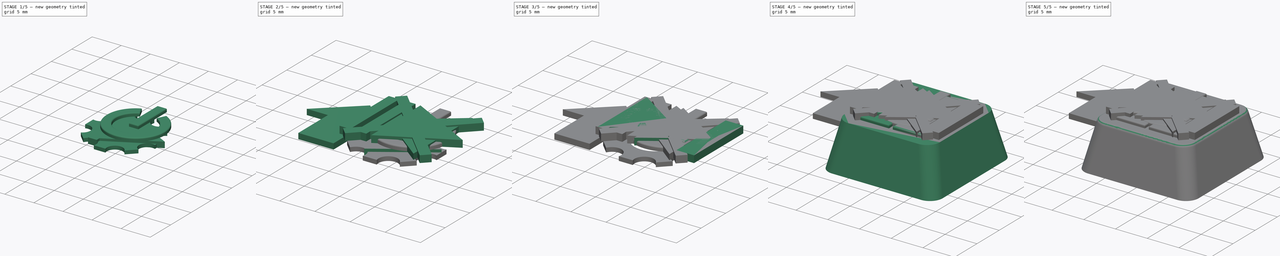
[diagram: build sequence overview — one tinted view per stage of 5, left to right]
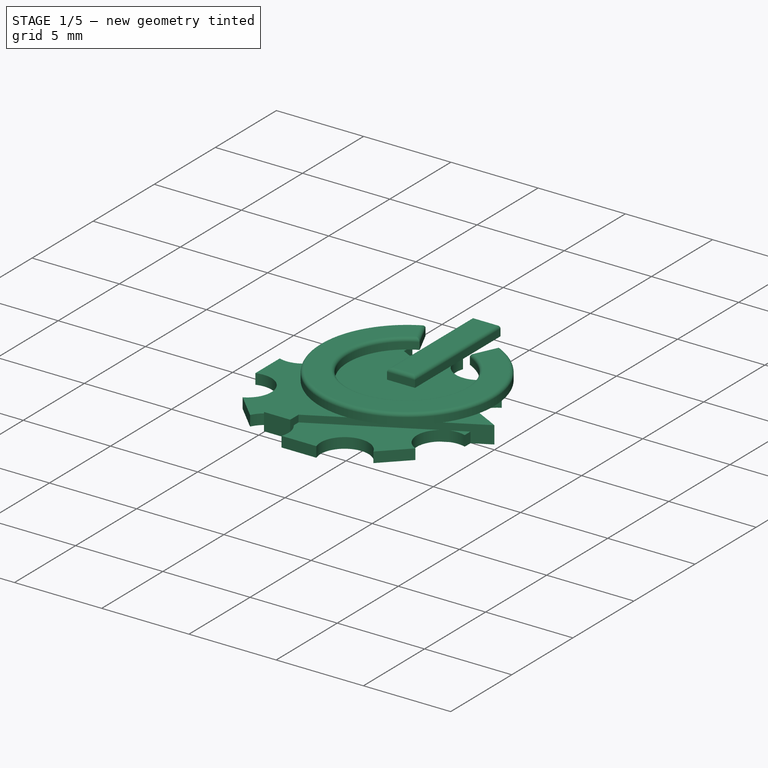
[diagram: stage 1 of 5 — iso view after this stage's code; geometry added in this stage tinted green]
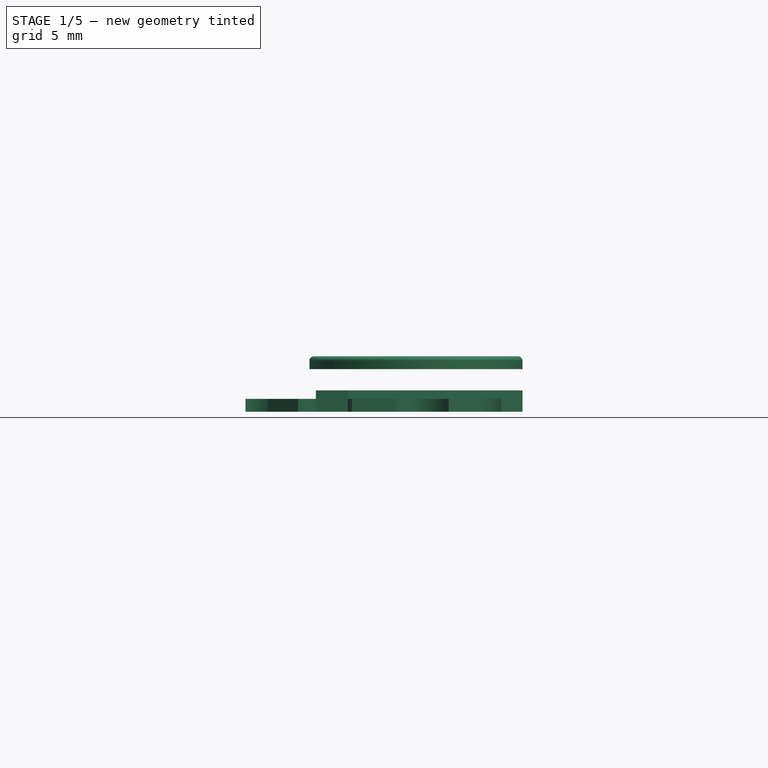
[diagram: stage 1 of 5 — front view after this stage's code; geometry added in this stage tinted green]
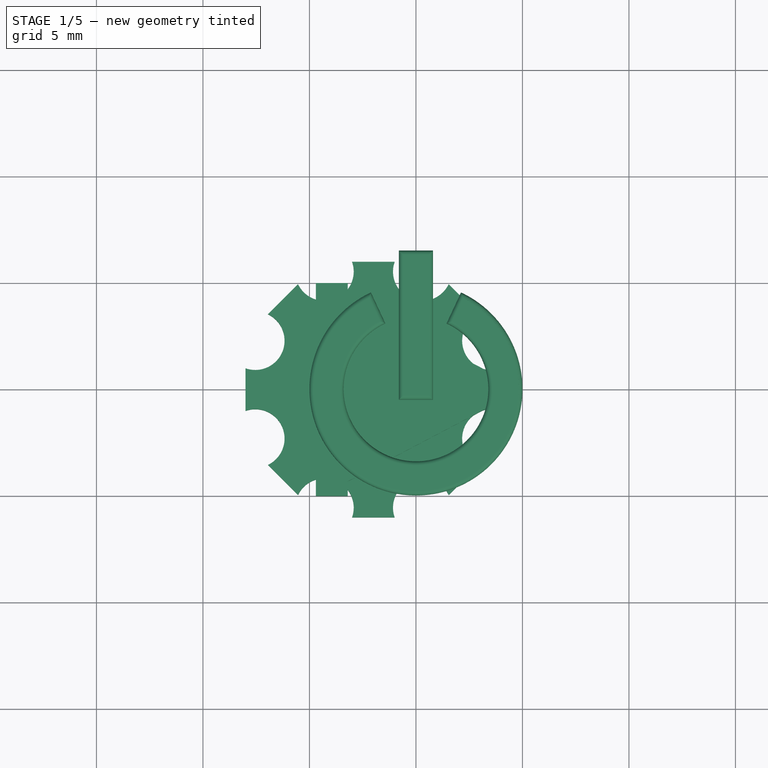
[diagram: stage 1 of 5 — top view after this stage's code; geometry added in this stage tinted green]
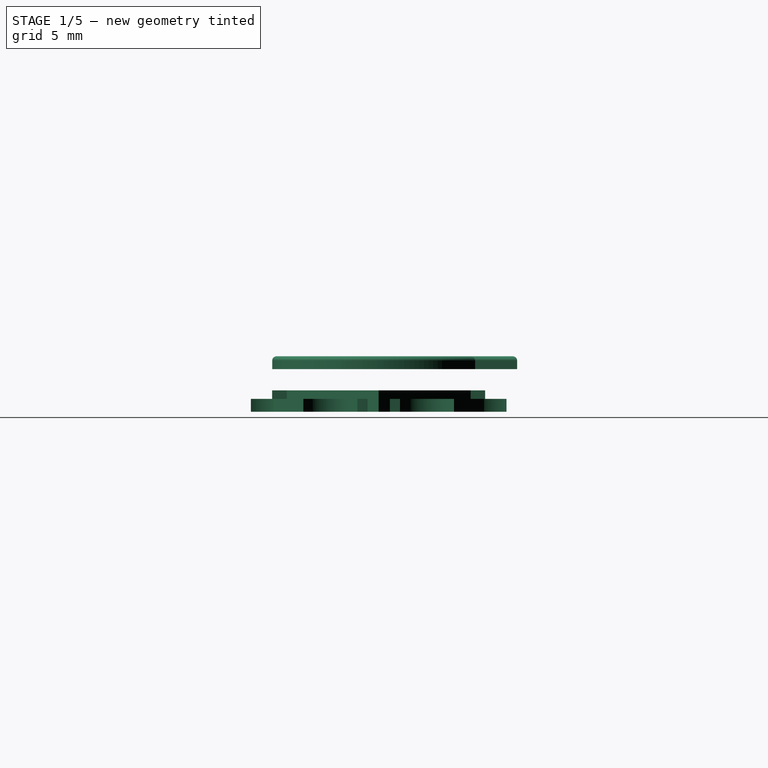
[diagram: stage 1 of 5 — right view after this stage's code; geometry added in this stage tinted green]
FCSTD DOCUMENT  (FreeCAD 0.17R13541 (Git))
Label: Keycap_quadr_flat_fillet_shall
License: All rights reserved
LicenseURL: http://en.wikipedia.org/wiki/All_rights_reserved
objects: Sketcher::SketchObject×21, PartDesign::Body×16, PartDesign::Pad×14, Part::Fillet×8, Part::MultiFuse×6, Part::Sweep×2, PartDesign::Pocket×1, Part::Cut×1, Part::Chamfer×1, Part::Part2DObjectPython×1, Part::Extrusion×1, Part::Mirroring×1
note: 88 computed .brp shape members not serialized (recipe doc carries the construction recipe); baked Part::Feature solids carry a one-line shape summary decoded from their .brp

FEATURE [Sketcher::SketchObject] Sketch015
  MapMode = 5
  Support = -> [XY_Plane010]
  sketch-geometry (3):
    g0: LineSegment StartX=-4.5 StartY=5 StartZ=0 EndX=5 EndY=0 EndZ=0
    g1: LineSegment StartX=5 StartY=0 StartZ=0 EndX=-4.5 EndY=-5 EndZ=0
    g2: LineSegment StartX=-4.5 StartY=-5 StartZ=0 EndX=-4.5 EndY=5 EndZ=0
  constraints (10):
    c: PointOnObject(g0,g-1)
    c: Coincident(g0,g1)
    c: Coincident(g1,g2)
    c: Vertical(g2)
    c: Equal(g0,g1)
    c: DistanceX(g-1,g0) = 5
    c: DistanceY(g-1,g0) = 5
    c: DistanceY(g1,g-1) = 5
    c: DistanceX(g1,g-1) = 4.5
    c: DistanceY(g1,g2) = 10
FEATURE [Sketcher::SketchObject] Sketch016
  MapMode = 5
  Support = -> [XY_Plane011]
  sketch-geometry (4):
    g0: LineSegment StartX=-4.7 StartY=5 StartZ=0 EndX=-3.2 EndY=5 EndZ=0
    g1: LineSegment StartX=-3.2 StartY=5 StartZ=0 EndX=-3.2 EndY=-5 EndZ=0
    g2: LineSegment StartX=-3.2 StartY=-5 StartZ=0 EndX=-4.7 EndY=-5 EndZ=0
    g3: LineSegment StartX=-4.7 StartY=-5 StartZ=0 EndX=-4.7 EndY=5 EndZ=0
  constraints (13):
    c: Coincident(g0,g1)
    c: Coincident(g1,g2)
    c: Coincident(g2,g3)
    c: Coincident(g3,g0)
    c: Horizontal(g0)
    c: Horizontal(g2)
    c: Vertical(g1)
    c: Vertical(g3)
    c: Equal(g3,g1)
    c: DistanceY(g-1,g0) = 5
    c: DistanceX(g0,g-1) = 3.2
    c: DistanceX(g0,g0) = 1.5
    c: DistanceY(g2,g0) = 10
FEATURE [PartDesign::Pad] Pad008
  Length = 1
  Length2 = 100
  Profile = -> Sketch016
  Type = 0
FEATURE [PartDesign::Pad] Pad009
  Length = 1
  Length2 = 100
  Profile = -> Sketch015
  Type = 0
FEATURE [Sketcher::SketchObject] Sketch018
  MapMode = 5
  Support = -> [XY_Plane013]
  sketch-geometry (17):
    g0: LineSegment StartX=-3 StartY=6 StartZ=0 EndX=-1 EndY=6 EndZ=0
    g1: LineSegment StartX=-5.53553 StartY=4.94975 StartZ=0 EndX=-6.94975 EndY=3.53553 EndZ=0
    g2: LineSegment StartX=-8 StartY=1 StartZ=0 EndX=-8 EndY=-1 EndZ=0
    g3: LineSegment StartX=-6.94975 StartY=-3.53553 StartZ=0 EndX=-5.53553 EndY=-4.94975 EndZ=0
    g4: LineSegment StartX=-3 StartY=-6 StartZ=0 EndX=-1 EndY=-6 EndZ=0
    g5: LineSegment StartX=1.53553 StartY=-4.94975 StartZ=0 EndX=2.94975 EndY=-3.53553 EndZ=0
    g6: LineSegment StartX=4 StartY=-1 StartZ=0 EndX=4 EndY=1 EndZ=0
    g7: LineSegment StartX=2.94975 StartY=3.53553 StartZ=0 EndX=1.53553 EndY=4.94975 EndZ=0
    g8: ArcOfCircle CenterX=-7.54328 CenterY=2.2961 CenterZ=0 NormalX=0 NormalY=0 NormalZ=1 AngleXU=0 Radius=1.37422 StartAngle=4.37359 EndAngle=7.40738
    g9: ArcOfCircle CenterX=-4.2961 CenterY=5.54328 CenterZ=0 NormalX=0 NormalY=0 NormalZ=1 AngleXU=0 Radius=1.37422 StartAngle=3.5882 EndAngle=6.62198
    g10: ArcOfCircle CenterX=0.296101 CenterY=5.54328 CenterZ=0 NormalX=0 NormalY=0 NormalZ=1 AngleXU=0 Radius=1.37422 StartAngle=2.8028 EndAngle=5.83658
    g11: ArcOfCircle CenterX=3.54328 CenterY=2.2961 CenterZ=0 NormalX=0 NormalY=0 NormalZ=1 AngleXU=0 Radius=1.37422 StartAngle=2.0174 EndAngle=5.05118
    g12: ArcOfCircle CenterX=3.54328 CenterY=-2.2961 CenterZ=0 NormalX=0 NormalY=0 NormalZ=1 AngleXU=0 Radius=1.37422 StartAngle=1.232 EndAngle=4.26579
    g13: ArcOfCircle CenterX=0.296101 CenterY=-5.54328 CenterZ=0 NormalX=0 NormalY=0 NormalZ=1 AngleXU=0 Radius=1.37422 StartAngle=0.446603 EndAngle=3.48039
    g14: ArcOfCircle CenterX=-4.2961 CenterY=-5.54328 CenterZ=0 NormalX=0 NormalY=0 NormalZ=1 AngleXU=0 Radius=1.37422 StartAngle=5.94439 EndAngle=8.97818
    g15: ArcOfCircle CenterX=-7.54328 CenterY=-2.2961 CenterZ=0 NormalX=0 NormalY=0 NormalZ=1 AngleXU=0 Radius=1.37422 StartAngle=5.15899 EndAngle=8.19278
    g16: Circle CenterX=-2 CenterY=0 CenterZ=0 NormalX=0 NormalY=0 NormalZ=1 AngleXU=0 Radius=3
  constraints (55):
    c: Horizontal(g0)
    c: Vertical(g2)
    c: Horizontal(g4)
    c: Vertical(g6)
    c: Equal(g0,g7)
    c: Equal(g0,g6)
    c: Equal(g0,g5)
    c: Equal(g0,g4)
    c: Equal(g0,g3)
    c: Equal(g0,g2)
    c: Equal(g0,g1)
    c: Angle(g0,g7) = 2.35619
    c: Angle(g6,g5) = 2.35619
    c: Angle(g4,g3) = 2.35619
    c: Angle(g1,g0) = 2.35619
    c: Coincident(g8,g1)
    c: Coincident(g8,g2)
    c: Coincident(g9,g1)
    c: Coincident(g9,g0)
    c: Coincident(g10,g0)
    c: Coincident(g10,g7)
    c: Coincident(g11,g7)
    c: Coincident(g11,g6)
    c: Coincident(g12,g6)
    c: Coincident(g12,g5)
    c: Coincident(g13,g5)
    c: Coincident(g13,g4)
    c: Coincident(g14,g4)
    c: Coincident(g14,g3)
    c: Coincident(g15,g3)
    c: Coincident(g15,g2)
    c: Equal(g10, g11-g15) x5
    c: Equal(g10,g8)
    c: Equal(g10,g9)
    c: DistanceX(g1,g3) = 0
    c: DistanceX(g7,g5) = 0
    c: DistanceY(g7,g1) = 0
    c: DistanceY(g3,g5) = 0
    c: DistanceY(g8,g11) = 0
    c: DistanceY(g15,g12) = 0
    c: DistanceY(g13,g14) = 0
    c: DistanceY(g9,g10) = 0
    c: DistanceX(g15,g8) = 0
    c: DistanceX(g14,g9) = 0
    c: DistanceX(g0,g0) = 2
    c: DistanceX(g2,g6) = 12
    c: DistanceY(g4,g0) = 12
    c: DistanceX(g2,g16) = 6
    c: DistanceY(g16,g0) = 6
    c: Distance(g8,g16) = 6
    c: Distance(g9,g16) = 6
    c: DistanceY(g-1,g16) = 0
    c: DistanceX(g16,g-1) = 2
    c: Radius(g16) = 3
    c: Distance(g16,g7) = 6
FEATURE [PartDesign::Pad] Pad011
  Length = 0.6
  Length2 = 100
  Profile = -> Sketch018
  Type = 0
FEATURE [PartDesign::Body] Body013  label="Bild Settings"
  Group = -> [Sketch018,Pad011]
  Origin = -> Origin013
  Placement = pos=(2,0,2) rot=(0,0,1;0rad)
  Tip = -> Pad011
FEATURE [Sketcher::SketchObject] Sketch019
  MapMode = 5
  Support = -> [XY_Plane014]
  sketch-geometry (4):
    g0: LineSegment StartX=-0.56 StartY=3.08 StartZ=0 EndX=0.116189 EndY=4.53009 EndZ=0
    g1: LineSegment StartX=-3.44 StartY=3.08 StartZ=0 EndX=-4.11619 EndY=4.53009 EndZ=0
    g2: ArcOfCircle CenterX=-2 CenterY=0 CenterZ=0 NormalX=0 NormalY=0 NormalZ=1 AngleXU=0 Radius=3.4 StartAngle=2.00813 EndAngle=7.41664
    g3: ArcOfCircle CenterX=-2 CenterY=0 CenterZ=0 NormalX=0 NormalY=0 NormalZ=1 AngleXU=0 Radius=5 StartAngle=2.00781 EndAngle=7.41697
  constraints (13):
    c: PointOnObject(g2,g-1)
    c: Coincident(g2,g0)
    c: Coincident(g2,g1)
    c: Coincident(g3,g2)
    c: Coincident(g3,g0)
    c: Coincident(g3,g1)
    c: Equal(g1,g0)
    c: Angle(g-1,g0) = 1.13446
    c: Angle(g-1,g1) = 2.00713
    c: DistanceX(g2,g-1) = 2
    c: Radius(g3) = 5
    c: Radius(g2) = 3.4
    c: DistanceY(g-1,g0) = 3.08
FEATURE [PartDesign::Pad] Pad012
  Length = 0.6
  Length2 = 100
  Profile = -> Sketch019
  Type = 0
FEATURE [PartDesign::Body] Body014  label="Bild Power Ring"
  Group = -> [Sketch019,Pad012]
  Origin = -> Origin014
  Placement = pos=(2,0,2) rot=(0,0,1;0rad)
  Tip = -> Pad012
FEATURE [Sketcher::SketchObject] Sketch021
  AttachmentOffset = pos=(0,0,2) rot=(0,0,1;0rad)
  MapMode = 5
  Placement = pos=(0,0,2) rot=(0,0,1;0rad)
  Support = -> [XY_Plane015]
  sketch-geometry (4):
    g0: LineSegment StartX=-0.8 StartY=6.5 StartZ=0 EndX=0.8 EndY=6.5 EndZ=0
    g1: LineSegment StartX=0.8 StartY=6.5 StartZ=0 EndX=0.8 EndY=-0.5 EndZ=0
    g2: LineSegment StartX=0.8 StartY=-0.5 StartZ=0 EndX=-0.8 EndY=-0.5 EndZ=0
    g3: LineSegment StartX=-0.8 StartY=-0.5 StartZ=0 EndX=-0.8 EndY=6.5 EndZ=0
  constraints (12):
    c: Coincident(g0,g1)
    c: Coincident(g1,g2)
    c: Coincident(g2,g3)
    c: Coincident(g3,g0)
    c: Horizontal(g0)
    c: Horizontal(g2)
    c: Vertical(g1)
    c: Vertical(g3)
    c: DistanceX(g0,g0) = 1.6
    c: DistanceY(g1,g-1) = 0.5
    c: DistanceY(g2,g0) = 7
    c: DistanceX(g2,g-1) = 0.8
FEATURE [PartDesign::Pad] Pad013
  Length = 0.6
  Length2 = 100
  Profile = -> Sketch021
  Type = 0
FEATURE [PartDesign::Body] Body015  label="Bild Power Bar"
  Group = -> [Sketch021,Pad013]
  Origin = -> Origin015
  Tip = -> Pad013
FEATURE [Part::MultiFuse] Fusion005
  Shapes = -> [Body015,Body014]
FEATURE [Part::Fillet] Fillet007  label="Bild Power"
  Base = -> Fusion005
  Edges = 8 edges r=0.2: [Edge4,Edge7,Edge10,Edge12,Edge16,Edge19,Edge22,Edge24]
note: 1 file-system path scrubbed to <path> (originals preserved in the JSON sidecar)
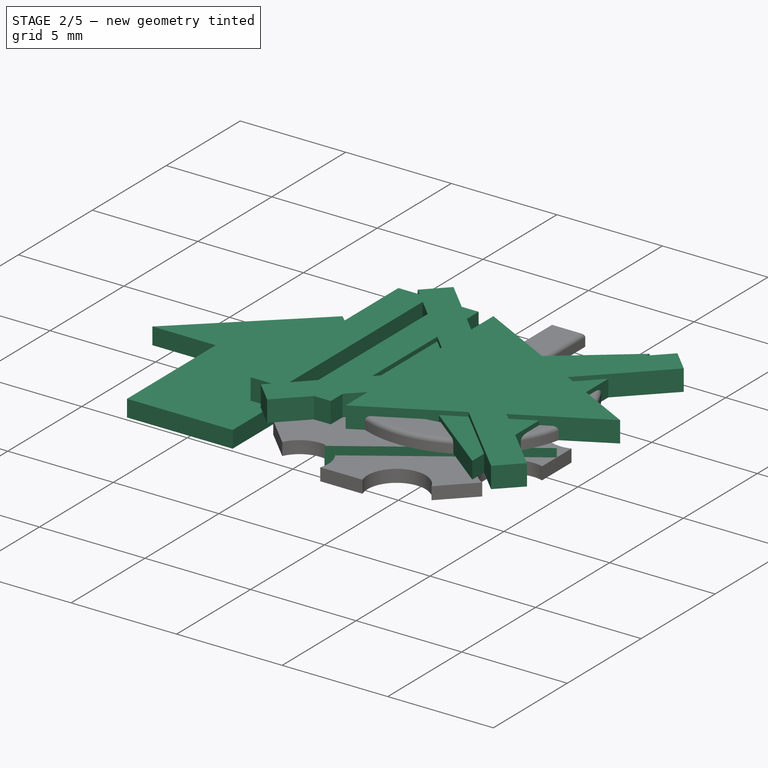
[diagram: stage 2 of 5 — iso view after this stage's code; geometry added in this stage tinted green]
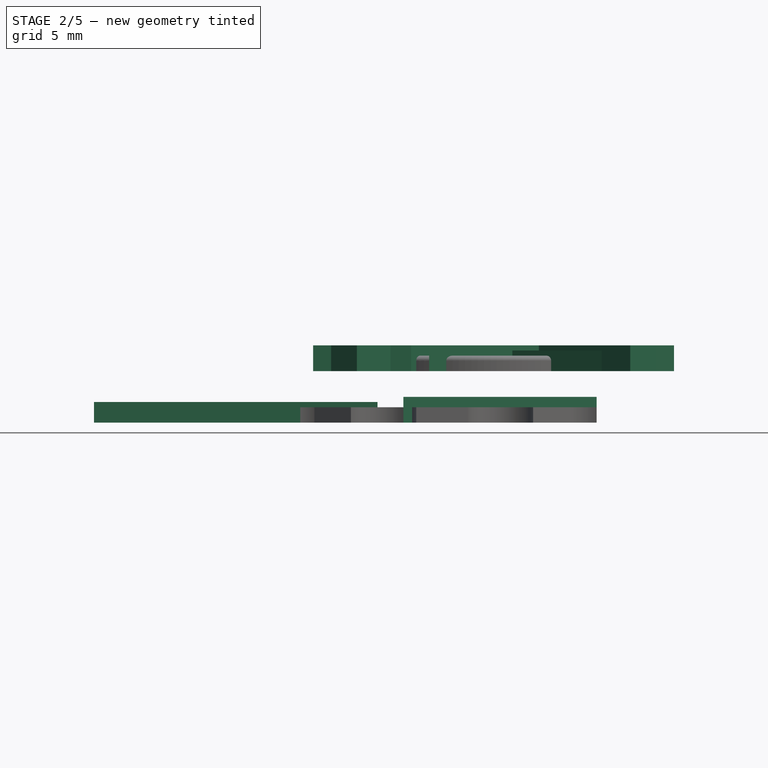
[diagram: stage 2 of 5 — front view after this stage's code; geometry added in this stage tinted green]
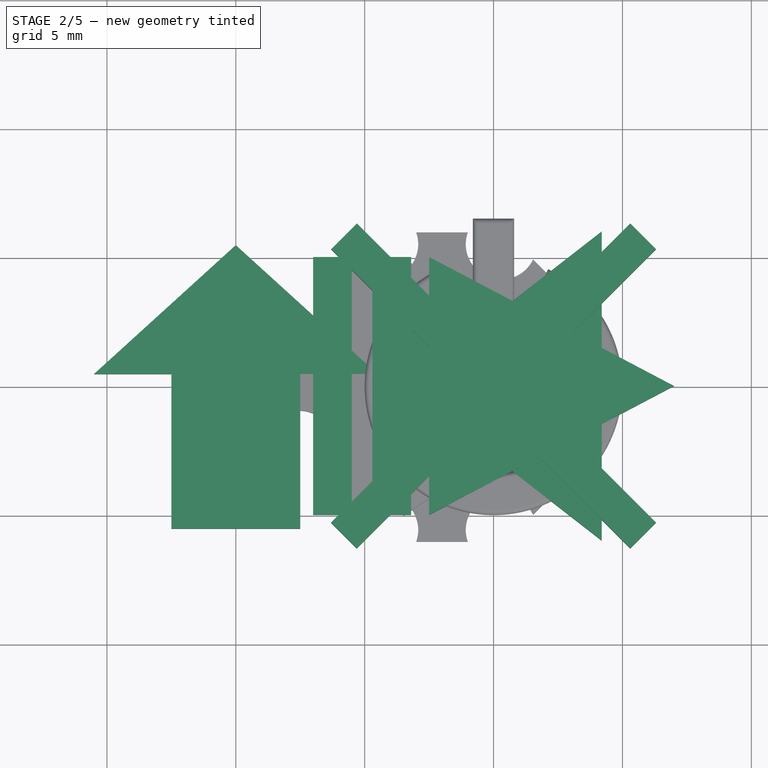
[diagram: stage 2 of 5 — top view after this stage's code; geometry added in this stage tinted green]
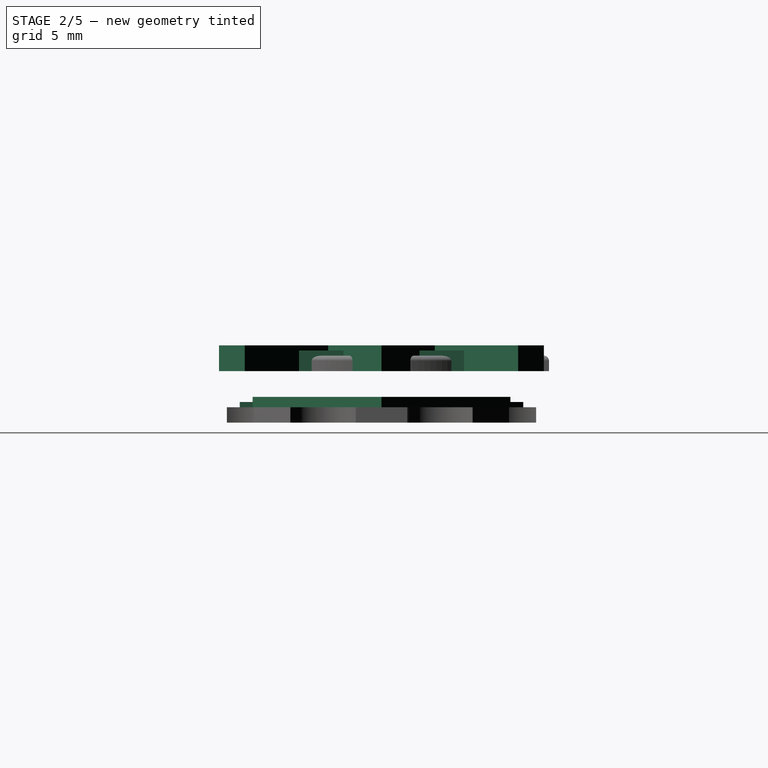
[diagram: stage 2 of 5 — right view after this stage's code; geometry added in this stage tinted green]
FEATURE [PartDesign::Body] Body007  label="Bar"
  Group = -> [Sketch010,Pad005]
  Origin = -> Origin007
  Placement = pos=(10.2,0,2) rot=(0,0,1;0rad)
  Tip = -> Pad005
FEATURE [Sketcher::SketchObject] Sketch011
  AttachmentOffset = pos=(1,0,0) rot=(0,0,1;0rad)
  MapMode = 5
  Placement = pos=(1,0,0) rot=(0,0,1;0rad)
  Support = -> [XY_Plane005]
  sketch-geometry (3):
    g0: LineSegment StartX=-4.5 StartY=5 StartZ=0 EndX=3 EndY=0 EndZ=0
    g1: LineSegment StartX=3 StartY=0 StartZ=0 EndX=-4.5 EndY=-5 EndZ=0
    g2: LineSegment StartX=-4.5 StartY=-5 StartZ=0 EndX=-4.5 EndY=5 EndZ=0
  constraints (10):
    c: PointOnObject(g0,g-1)
    c: Coincident(g0,g1)
    c: Coincident(g1,g2)
    c: Vertical(g2)
    c: Equal(g0,g1)
    c: DistanceX(g-1,g0) = 3
    c: DistanceY(g-1,g0) = 5
    c: DistanceY(g1,g-1) = 5
    c: DistanceX(g1,g-1) = 4.5
    c: DistanceY(g1,g2) = 10
FEATURE [PartDesign::Pad] Pad004
  Length = 1
  Length2 = 100
  Profile = -> Sketch011
  Type = 0
FEATURE [Sketcher::SketchObject] Sketch013
  MapMode = 5
  Support = -> [XY_Plane009]
  sketch-geometry (6):
    g0: LineSegment StartX=-14.5 StartY=2.5 StartZ=0 EndX=-14.5 EndY=-2.5 EndZ=0
    g1: LineSegment StartX=-14.5 StartY=-2.5 StartZ=0 EndX=-10.5 EndY=-2.5 EndZ=0
    g2: LineSegment StartX=-10.5 StartY=-2.5 StartZ=0 EndX=-6 EndY=-6 EndZ=0
    g3: LineSegment StartX=-6 StartY=-6 StartZ=0 EndX=-6 EndY=6 EndZ=0
    g4: LineSegment StartX=-6 StartY=6 StartZ=0 EndX=-10.5 EndY=2.5 EndZ=0
    g5: LineSegment StartX=-10.5 StartY=2.5 StartZ=0 EndX=-14.5 EndY=2.5 EndZ=0
  constraints (18):
    c: Vertical(g0)
    c: Coincident(g0,g1)
    c: Horizontal(g1)
    c: Coincident(g1,g2)
    c: Coincident(g2,g3)
    c: Vertical(g3)
    c: Coincident(g3,g4)
    c: Coincident(g4,g5)
    c: Coincident(g5,g0)
    c: Horizontal(g5)
    c: Equal(g5,g1)
    c: Equal(g4,g2)
    c: DistanceY(g2,g3) = 12
    c: DistanceY(g0,g0) = 5
    c: DistanceY(g-1,g3) = 6
    c: DistanceX(g0,g4) = 4
    c: DistanceX(g4,g3) = 4.5
    c: DistanceX(g3,g-1) = 6
FEATURE [PartDesign::Pad] Pad007
  Length = 0.8
  Length2 = 100
  Profile = -> Sketch013
  Type = 0
FEATURE [PartDesign::Body] Body008  label="Lautsprecher"
  Group = -> [Sketch013,Pad007]
  Origin = -> Origin008
  Placement = pos=(10.2,0,2) rot=(0,0,1;0rad)
  Tip = -> Pad007
FEATURE [Sketcher::SketchObject] Sketch014
  MapMode = 5
  Support = -> [XY_Plane008]
  sketch-geometry (12):
    g0: LineSegment StartX=-5.3033 StartY=6.3033 StartZ=0 EndX=0 EndY=1 EndZ=0
    g1: LineSegment StartX=0 StartY=1 StartZ=0 EndX=5.3033 EndY=6.3033 EndZ=0
    g2: LineSegment StartX=5.3033 StartY=6.3033 StartZ=0 EndX=6.3033 EndY=5.3033 EndZ=0
    g3: LineSegment StartX=6.3033 StartY=5.3033 StartZ=0 EndX=1 EndY=0 EndZ=0
    g4: LineSegment StartX=1 StartY=0 StartZ=0 EndX=6.3033 EndY=-5.3033 EndZ=0
    g5: LineSegment StartX=6.3033 StartY=-5.3033 StartZ=0 EndX=5.3033 EndY=-6.3033 EndZ=0
    g6: LineSegment StartX=5.3033 StartY=-6.3033 StartZ=0 EndX=0 EndY=-1 EndZ=0
    g7: LineSegment StartX=0 StartY=-1 StartZ=0 EndX=-5.3033 EndY=-6.3033 EndZ=0
    g8: LineSegment StartX=-5.3033 StartY=-6.3033 StartZ=0 EndX=-6.3033 EndY=-5.3033 EndZ=0
    g9: LineSegment StartX=-6.3033 StartY=-5.3033 StartZ=0 EndX=-1 EndY=9.2e-11 EndZ=0
    g10: LineSegment StartX=-1 StartY=9.2e-11 StartZ=0 EndX=-6.3033 EndY=5.3033 EndZ=0
    g11: LineSegment StartX=-6.3033 StartY=5.3033 StartZ=0 EndX=-5.3033 EndY=6.3033 EndZ=0
  constraints (37):
    c: Coincident(g0,g1)
    c: Coincident(g1,g2)
    c: Coincident(g2,g3)
    c: Coincident(g3,g4)
    c: Coincident(g4,g5)
    c: Coincident(g5,g6)
    c: Coincident(g6,g7)
    c: Coincident(g7,g8)
    c: Coincident(g8,g9)
    c: Coincident(g9,g10)
    c: Coincident(g10,g11)
    c: Coincident(g11,g0)
    c: Equal(g0,g1)
    c: Equal(g10,g0)
    c: Equal(g3,g1)
    c: Equal(g3,g4)
    c: Equal(g6,g7)
    c: Equal(g9,g7)
    c: Parallel(g1,g3)
    c: Parallel(g0,g10)
    c: Parallel(g9,g7)
    c: Parallel(g6,g4)
    c: Parallel(g11,g5)
    c: Parallel(g8,g2)
    c: Parallel(g10,g6)
    c: Parallel(g9,g1)
    c: Equal(g11,g2)
    c: Equal(g2,g5)
    c: Equal(g5,g8)
    c: DistanceX(g0,g-1) = 0
    c: DistanceX(g-1,g6) = 0
    c: DistanceY(g-1,g3) = 0
    c: Distance(g1) = 7.5
    c: Angle(g10,g9) = 1.5708
    c: DistanceY(g-1,g0) = 1
    c: DistanceX(g-1,g3) = 1
    c: Angle(g-1,g1) = 0.785398
FEATURE [PartDesign::Pad] Pad006
  Length = 1
  Length2 = 100
  Profile = -> Sketch014
  Type = 0
FEATURE [PartDesign::Body] Body009
  Group = -> [Sketch014,Pad006]
  Origin = -> Origin009
  Placement = pos=(0,0,2) rot=(0,0,1;0rad)
  Tip = -> Pad006
FEATURE [Part::MultiFuse] Fusion003  label="Bild Mute"
  Shapes = -> [Body009,Body008]
FEATURE [PartDesign::Body] Body010
  Group = -> [Sketch016,Pad008]
  Origin = -> Origin011
  Placement = pos=(0,0,2) rot=(0,0,1;0rad)
  Tip = -> Pad008
FEATURE [Part::Mirroring] Part__Mirroring  label="Pause"
  Base = (-5.1,0,0)
  Normal = (1,0,0)
  Source = -> Body010
FEATURE [PartDesign::Body] Body011  label="Pfeil rechts004"
  Group = -> [Sketch015,Pad009]
  Origin = -> Origin010
  Placement = pos=(2,0,2) rot=(0,0,1;0rad)
  Tip = -> Pad009
FEATURE [Sketcher::SketchObject] Sketch017
  MapMode = 5
  Support = -> [XY_Plane012]
  sketch-geometry (7):
    g0: LineSegment StartX=-15.5 StartY=0.5 StartZ=0 EndX=-10 EndY=5.5 EndZ=0
    g1: LineSegment StartX=-10 StartY=5.5 StartZ=0 EndX=-4.5 EndY=0.5 EndZ=0
    g2: LineSegment StartX=-4.5 StartY=0.5 StartZ=0 EndX=-7.5 EndY=0.5 EndZ=0
    g3: LineSegment StartX=-7.5 StartY=0.5 StartZ=0 EndX=-7.5 EndY=-5.5 EndZ=0
    g4: LineSegment StartX=-7.5 StartY=-5.5 StartZ=0 EndX=-12.5 EndY=-5.5 EndZ=0
    g5: LineSegment StartX=-12.5 StartY=-5.5 StartZ=0 EndX=-12.5 EndY=0.5 EndZ=0
    g6: LineSegment StartX=-12.5 StartY=0.5 StartZ=0 EndX=-15.5 EndY=0.5 EndZ=0
  constraints (21):
    c: Coincident(g0,g1)
    c: Coincident(g1,g2)
    c: Horizontal(g2)
    c: Coincident(g2,g3)
    c: Vertical(g3)
    c: Coincident(g3,g4)
    c: Horizontal(g4)
    c: Coincident(g4,g5)
    c: Vertical(g5)
    c: Coincident(g5,g6)
    c: Coincident(g6,g0)
    c: Equal(g6,g2)
    c: Equal(g0,g1)
    c: Equal(g5,g3)
    c: Parallel(g6,g2)
    c: DistanceX(g0,g-1) = 10
    c: DistanceX(g4,g3) = 5
    c: DistanceX(g2,g1) = 3
    c: DistanceY(g0,g0) = 5
    c: DistanceY(g4,g5) = 6
    c: DistanceY(g-1,g1) = 0.5
FEATURE [PartDesign::Pad] Pad010  label="Pfeil1"
  Length = 0.8
  Length2 = 100
  Profile = -> Sketch017
  Type = 0
FEATURE [PartDesign::Body] Body012  label="Bild Shift"
  Group = -> [Sketch017,Pad010]
  Origin = -> Origin012
  Placement = pos=(10.2,0,2) rot=(0,0,1;0rad)
  Tip = -> Pad010
FEATURE [Part::MultiFuse] Fusion004  label="Bild Play"
  Shapes = -> [Body010,Part__Mirroring,Body011]
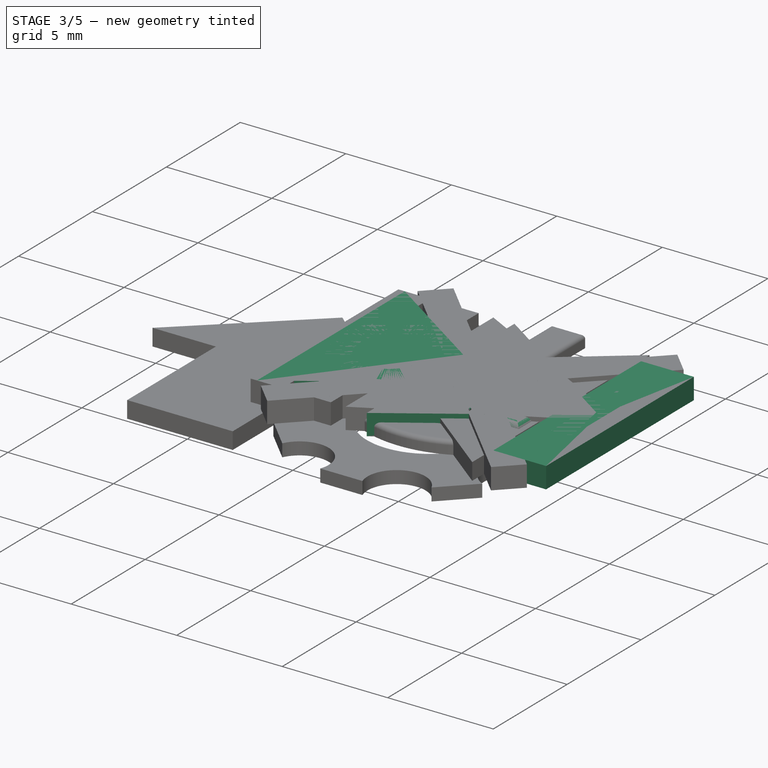
[diagram: stage 3 of 5 — iso view after this stage's code; geometry added in this stage tinted green]
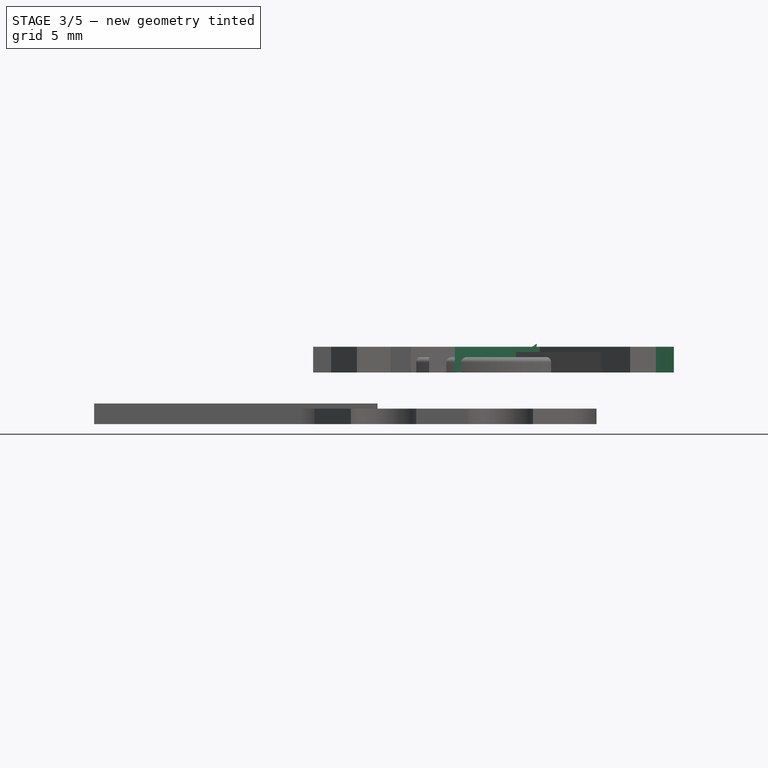
[diagram: stage 3 of 5 — front view after this stage's code; geometry added in this stage tinted green]
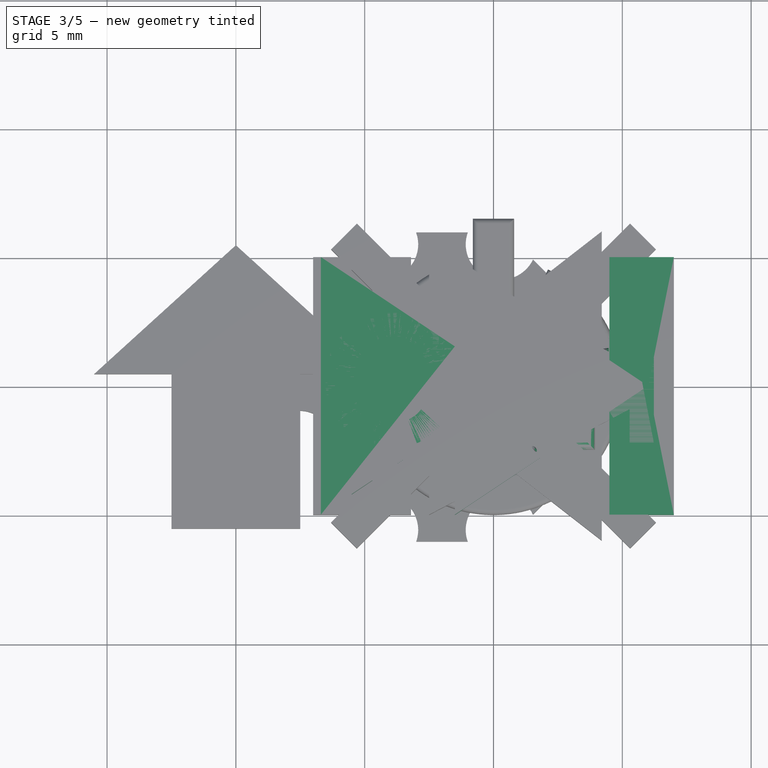
[diagram: stage 3 of 5 — top view after this stage's code; geometry added in this stage tinted green]
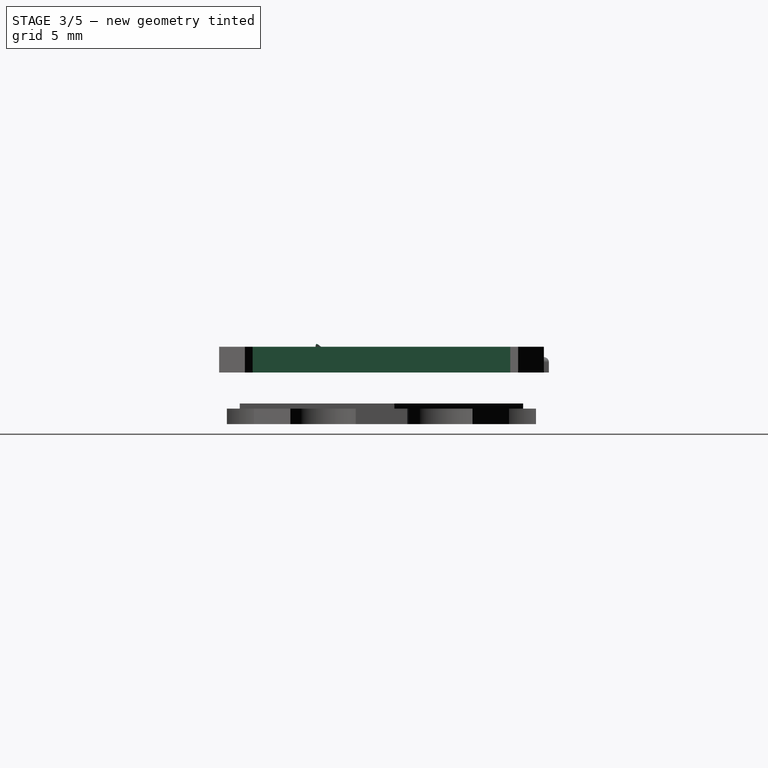
[diagram: stage 3 of 5 — right view after this stage's code; geometry added in this stage tinted green]
FEATURE [Part::Part2DObjectPython] ShapeString  # Draft 2D object (typed FeaturePython)
  FontFile = <path> Keyboard/BAUHS93.TTF
  Size = 8
  String = Ctrl
  Tracking = 0
FEATURE [Part::Extrusion] Extrude  label="Ctrl"
  Base = -> ShapeString
  Dir = (0,0,1)
  DirMode = 2
  FaceMakerClass = Part::FaceMakerBullseye
  LengthFwd = 1
  LengthRev = 0
  Placement = pos=(-7,-2.5,2) rot=(0,0,1;0rad)
  Solid = false
  Symmetric = false
FEATURE [Part::Fillet] Fillet004
  Base = -> Extrude
  Edges = 17 edges r=0.3: [Edge4,Edge7,Edge10,Edge13,Edge16,Edge19,Edge22,Edge25,Edge28,Edge31,Edge34,Edge37,Edge40,Edge43,Edge46,Edge49,Edge51]
FEATURE [Part::Fillet] Fillet005
  Base = -> Fillet004
  Edges = 13 edges: [Edge89 r=0.3,Edge92 r=0.3,Edge95 r=0.3,Edge98 r=0.3,Edge101 r=0.3,Edge104 r=0.3,Edge107 r=0.3,Edge110 r=1,Edge113 r=0.3,Edge116 r=0.3,Edge119 r=0.3,Edge122 r=0.3,Edge124 r=0.3]
FEATURE [Part::Fillet] Fillet006  label="Bild Ctrl"
  Base = -> Fillet005
  Edges = 13 edges r=0.3: [Edge154,Edge157,Edge160,Edge163,Edge166,Edge169,Edge172,Edge175,Edge177,Edge181,Edge184,Edge187,Edge189]
FEATURE [Sketcher::SketchObject] Sketch010
  MapMode = 5
  Support = -> [XY_Plane006]
  sketch-geometry (4):
    g0: LineSegment StartX=-5.7 StartY=5 StartZ=0 EndX=-3.2 EndY=5 EndZ=0
    g1: LineSegment StartX=-3.2 StartY=5 StartZ=0 EndX=-3.2 EndY=-5 EndZ=0
    g2: LineSegment StartX=-3.2 StartY=-5 StartZ=0 EndX=-5.7 EndY=-5 EndZ=0
    g3: LineSegment StartX=-5.7 StartY=-5 StartZ=0 EndX=-5.7 EndY=5 EndZ=0
  constraints (13):
    c: Coincident(g0,g1)
    c: Coincident(g1,g2)
    c: Coincident(g2,g3)
    c: Coincident(g3,g0)
    c: Horizontal(g0)
    c: Horizontal(g2)
    c: Vertical(g1)
    c: Vertical(g3)
    c: Equal(g3,g1)
    c: DistanceY(g-1,g0) = 5
    c: DistanceX(g0,g-1) = 3.2
    c: DistanceX(g0,g0) = 2.5
    c: DistanceY(g2,g0) = 10
FEATURE [Sketcher::SketchObject] Sketch012
  MapMode = 5
  Support = -> [XY_Plane007]
  sketch-geometry (3):
    g0: LineSegment StartX=-4.5 StartY=5 StartZ=0 EndX=3 EndY=0 EndZ=0
    g1: LineSegment StartX=3 StartY=0 StartZ=0 EndX=-4.5 EndY=-5 EndZ=0
    g2: LineSegment StartX=-4.5 StartY=-5 StartZ=0 EndX=-4.5 EndY=5 EndZ=0
  constraints (10):
    c: PointOnObject(g0,g-1)
    c: Coincident(g0,g1)
    c: Coincident(g1,g2)
    c: Vertical(g2)
    c: Equal(g0,g1)
    c: DistanceX(g-1,g0) = 3
    c: DistanceY(g-1,g0) = 5
    c: DistanceY(g1,g-1) = 5
    c: DistanceX(g1,g-1) = 4.5
    c: DistanceY(g1,g2) = 10
FEATURE [PartDesign::Pad] Pad003
  Length = 1
  Length2 = 100
  Profile = -> Sketch012
  Type = 0
FEATURE [PartDesign::Body] Body005  label="Pfeil rechts2"
  Group = -> [Sketch012,Pad003]
  Origin = -> Origin006
  Placement = pos=(-2.2,0,2) rot=(0,0,1;0rad)
  Tip = -> Pad003
FEATURE [PartDesign::Pad] Pad005
  Length = 1
  Length2 = 100
  Profile = -> Sketch010
  Type = 0
FEATURE [PartDesign::Body] Body006  label="Pfeil rechts003"
  Group = -> [Sketch011,Pad004]
  Origin = -> Origin005
  Placement = pos=(2,0,2) rot=(0,0,1;0rad)
  Tip = -> Pad004
FEATURE [Part::MultiFuse] Fusion002  label="Bild FF"
  Shapes = -> [Body007,Body005,Body006]
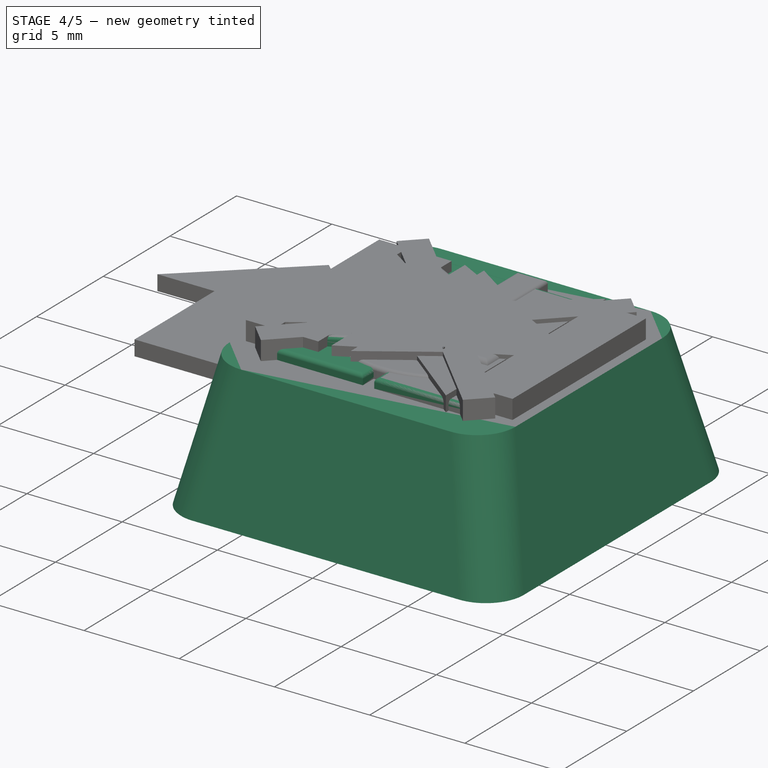
[diagram: stage 4 of 5 — iso view after this stage's code; geometry added in this stage tinted green]
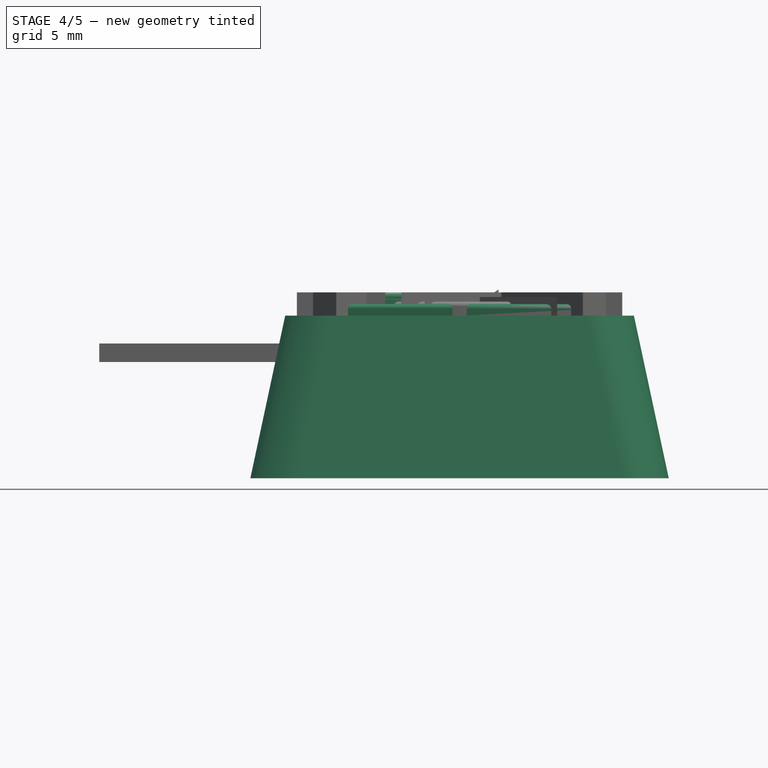
[diagram: stage 4 of 5 — front view after this stage's code; geometry added in this stage tinted green]
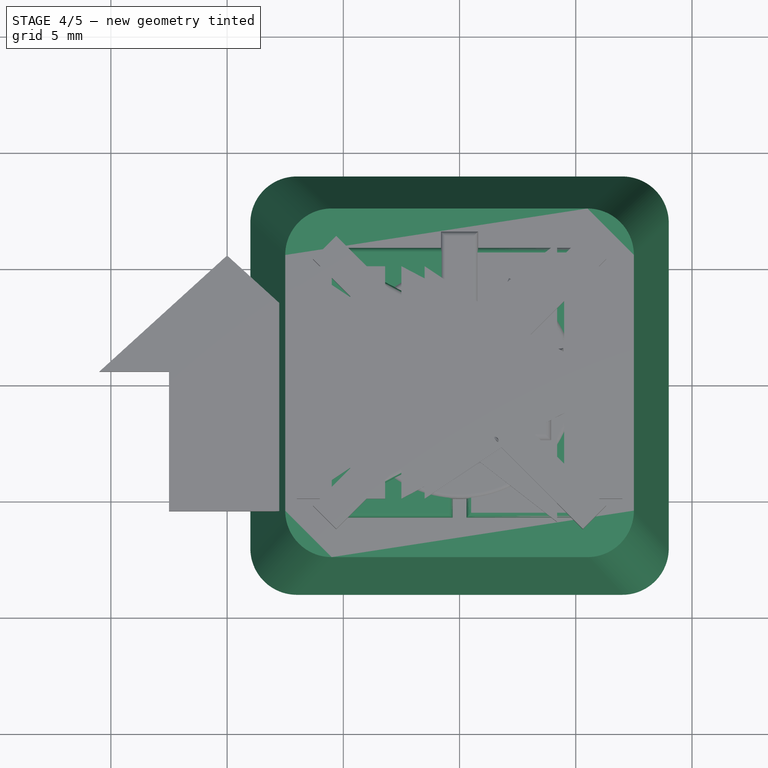
[diagram: stage 4 of 5 — top view after this stage's code; geometry added in this stage tinted green]
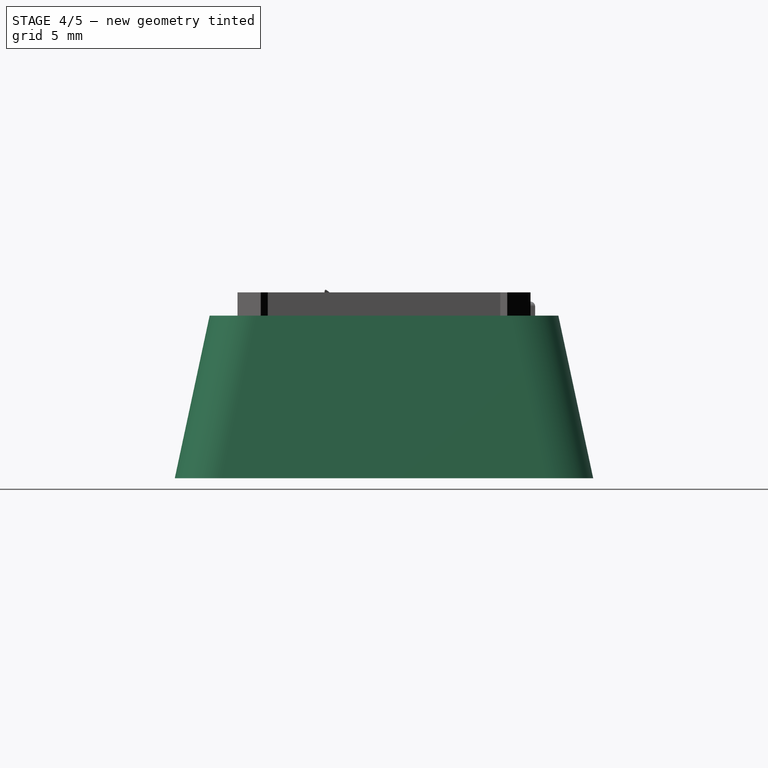
[diagram: stage 4 of 5 — right view after this stage's code; geometry added in this stage tinted green]
FEATURE [PartDesign::Body] Body  label="Aufnehmer"
  Group = -> [Sketch,Pad,Sketch001,Pocket]
  Origin = -> Origin
  Placement = pos=(0,0,-4) rot=(0,0,1;0rad)
  Tip = -> Pocket
FEATURE [Sketcher::SketchObject] Sketch002
  AttachmentOffset = pos=(0,0,-5) rot=(0,0,1;0rad)
  MapMode = 5
  Placement = pos=(0,0,-5) rot=(0,0,1;0rad)
  Support = -> [XY_Plane001]
  sketch-geometry (8):
    g0: LineSegment StartX=-7 StartY=9 StartZ=0 EndX=7 EndY=9 EndZ=0
    g1: LineSegment StartX=9 StartY=7 StartZ=0 EndX=9 EndY=-7 EndZ=0
    g2: LineSegment StartX=7 StartY=-9 StartZ=0 EndX=-7 EndY=-9 EndZ=0
    g3: LineSegment StartX=-9 StartY=-7 StartZ=0 EndX=-9 EndY=7 EndZ=0
    g4: ArcOfCircle CenterX=7 CenterY=7 CenterZ=0 NormalX=0 NormalY=0 NormalZ=1 AngleXU=0 Radius=2 StartAngle=0 EndAngle=1.5708
    g5: ArcOfCircle CenterX=-7 CenterY=7 CenterZ=0 NormalX=0 NormalY=0 NormalZ=1 AngleXU=0 Radius=2 StartAngle=1.5708 EndAngle=3.14159
    g6: ArcOfCircle CenterX=-7 CenterY=-7 CenterZ=0 NormalX=0 NormalY=0 NormalZ=1 AngleXU=0 Radius=2 StartAngle=3.14159 EndAngle=4.71239
    g7: ArcOfCircle CenterX=7 CenterY=-7 CenterZ=0 NormalX=0 NormalY=0 NormalZ=1 AngleXU=0 Radius=2 StartAngle=4.71239 EndAngle=6.28319
  constraints (20):
    c: Horizontal(g0)
    c: Horizontal(g2)
    c: Vertical(g1)
    c: Vertical(g3)
    c: Tangent(g0,g4) = 1.5708
    c: Tangent(g1,g4) = 1.5708
    c: Tangent(g0,g5) = 1.5708
    c: Tangent(g3,g5) = 1.5708
    c: Tangent(g3,g6) = 1.5708
    c: Tangent(g2,g6) = 1.5708
    c: Tangent(g2,g7) = 1.5708
    c: Tangent(g1,g7) = 1.5708
    c: Radius(g5) = 2
    c: Equal(g5,g4)
    c: Equal(g5,g6)
    c: Equal(g5,g7)
    c: DistanceY(g-1,g0) = 9
    c: DistanceY(g2,g-1) = 9
    c: DistanceX(g3,g-1) = 9
    c: DistanceX(g-1,g1) = 9
FEATURE [Sketcher::SketchObject] Sketch003
  AttachmentOffset = pos=(0,0,2) rot=(0,0,1;0rad)
  MapMode = 5
  Placement = pos=(0,0,2) rot=(0,0,1;0rad)
  Support = -> [XY_Plane001]
  sketch-geometry (8):
    g0: LineSegment StartX=-5.5 StartY=7.5 StartZ=0 EndX=5.5 EndY=7.5 EndZ=0
    g1: LineSegment StartX=7.5 StartY=5.5 StartZ=0 EndX=7.5 EndY=-5.5 EndZ=0
    g2: LineSegment StartX=5.5 StartY=-7.5 StartZ=0 EndX=-5.5 EndY=-7.5 EndZ=0
    g3: LineSegment StartX=-7.5 StartY=-5.5 StartZ=0 EndX=-7.5 EndY=5.5 EndZ=0
    g4: ArcOfCircle CenterX=-5.5 CenterY=5.5 CenterZ=0 NormalX=0 NormalY=0 NormalZ=1 AngleXU=0 Radius=2 StartAngle=1.5708 EndAngle=3.14159
    g5: ArcOfCircle CenterX=-5.5 CenterY=-5.5 CenterZ=0 NormalX=0 NormalY=0 NormalZ=1 AngleXU=0 Radius=2 StartAngle=3.14159 EndAngle=4.71239
    g6: ArcOfCircle CenterX=5.5 CenterY=-5.5 CenterZ=0 NormalX=0 NormalY=0 NormalZ=1 AngleXU=0 Radius=2 StartAngle=4.71239 EndAngle=6.28319
    g7: ArcOfCircle CenterX=5.5 CenterY=5.5 CenterZ=0 NormalX=0 NormalY=0 NormalZ=1 AngleXU=0 Radius=2 StartAngle=0 EndAngle=1.5708
  constraints (20):
    c: Horizontal(g0)
    c: Horizontal(g2)
    c: Vertical(g1)
    c: Vertical(g3)
    c: Tangent(g0,g4) = 1.5708
    c: Tangent(g3,g4) = 1.5708
    c: Tangent(g3,g5) = 1.5708
    c: Tangent(g2,g5) = 1.5708
    c: Tangent(g2,g6) = 1.5708
    c: Tangent(g1,g6) = 1.5708
    c: Tangent(g1,g7) = 1.5708
    c: Tangent(g0,g7) = 1.5708
    c: Radius(g4) = 2
    c: Radius(g7) = 2
    c: Radius(g5) = 2
    c: Radius(g6) = 2
    c: DistanceX(g3,g-1) = 7.5
    c: DistanceX(g-1,g1) = 7.5
    c: DistanceY(g-1,g0) = 7.5
    c: DistanceY(g2,g-1) = 7.5
FEATURE [Sketcher::SketchObject] Sketch004
  AttachmentOffset = pos=(0,0,-5) rot=(0,0,1;0rad)
  MapMode = 5
  Placement = pos=(0,0,-5) rot=(0,0,1;0rad)
  Support = -> [XY_Plane002]
  sketch-geometry (8):
    g0: LineSegment StartX=-7 StartY=8 StartZ=0 EndX=7 EndY=8 EndZ=0
    g1: LineSegment StartX=8 StartY=7 StartZ=0 EndX=8 EndY=-7 EndZ=0
    g2: LineSegment StartX=7 StartY=-8 StartZ=0 EndX=-7 EndY=-8 EndZ=0
    g3: LineSegment StartX=-8 StartY=-7 StartZ=0 EndX=-8 EndY=7 EndZ=0
    g4: ArcOfCircle CenterX=7 CenterY=7 CenterZ=0 NormalX=0 NormalY=0 NormalZ=1 AngleXU=0 Radius=1 StartAngle=0 EndAngle=1.5708
    g5: ArcOfCircle CenterX=-7 CenterY=7 CenterZ=0 NormalX=0 NormalY=0 NormalZ=1 AngleXU=0 Radius=1 StartAngle=1.5708 EndAngle=3.14159
    g6: ArcOfCircle CenterX=-7 CenterY=-7 CenterZ=0 NormalX=0 NormalY=0 NormalZ=1 AngleXU=0 Radius=1 StartAngle=3.14159 EndAngle=4.71239
    g7: ArcOfCircle CenterX=7 CenterY=-7 CenterZ=0 NormalX=0 NormalY=0 NormalZ=1 AngleXU=0 Radius=1 StartAngle=4.71239 EndAngle=6.28319
  constraints (20):
    c: Horizontal(g0)
    c: Horizontal(g2)
    c: Vertical(g1)
    c: Vertical(g3)
    c: Tangent(g0,g4) = 1.5708
    c: Tangent(g1,g4) = 1.5708
    c: Tangent(g0,g5) = 1.5708
    c: Tangent(g3,g5) = 1.5708
    c: Tangent(g3,g6) = 1.5708
    c: Tangent(g2,g6) = 1.5708
    c: Tangent(g2,g7) = 1.5708
    c: Tangent(g1,g7) = 1.5708
    c: Radius(g5) = 1
    c: Equal(g5,g4)
    c: Equal(g5,g6)
    c: Equal(g5,g7)
    c: DistanceY(g-1,g0) = 8
    c: DistanceY(g2,g-1) = 8
    c: DistanceX(g3,g-1) = 8
    c: DistanceX(g-1,g1) = 8
FEATURE [Sketcher::SketchObject] Sketch005
  MapMode = 5
  Support = -> [XY_Plane002]
  sketch-geometry (8):
    g0: LineSegment StartX=-5.5 StartY=6.5 StartZ=0 EndX=5.5 EndY=6.5 EndZ=0
    g1: LineSegment StartX=6.5 StartY=5.5 StartZ=0 EndX=6.5 EndY=-5.5 EndZ=0
    g2: LineSegment StartX=5.5 StartY=-6.5 StartZ=0 EndX=-5.5 EndY=-6.5 EndZ=0
    g3: LineSegment StartX=-6.5 StartY=-5.5 StartZ=0 EndX=-6.5 EndY=5.5 EndZ=0
    g4: ArcOfCircle CenterX=-5.5 CenterY=5.5 CenterZ=0 NormalX=0 NormalY=0 NormalZ=1 AngleXU=0 Radius=1 StartAngle=1.5708 EndAngle=3.14159
    g5: ArcOfCircle CenterX=-5.5 CenterY=-5.5 CenterZ=0 NormalX=0 NormalY=0 NormalZ=1 AngleXU=0 Radius=1 StartAngle=3.14159 EndAngle=4.71239
    g6: ArcOfCircle CenterX=5.5 CenterY=-5.5 CenterZ=0 NormalX=0 NormalY=0 NormalZ=1 AngleXU=0 Radius=1 StartAngle=4.71239 EndAngle=6.28319
    g7: ArcOfCircle CenterX=5.5 CenterY=5.5 CenterZ=0 NormalX=0 NormalY=0 NormalZ=1 AngleXU=0 Radius=1 StartAngle=0 EndAngle=1.5708
  constraints (20):
    c: Horizontal(g0)
    c: Horizontal(g2)
    c: Vertical(g1)
    c: Vertical(g3)
    c: Tangent(g0,g4) = 1.5708
    c: Tangent(g3,g4) = 1.5708
    c: Tangent(g3,g5) = 1.5708
    c: Tangent(g2,g5) = 1.5708
    c: Tangent(g2,g6) = 1.5708
    c: Tangent(g1,g6) = 1.5708
    c: Tangent(g1,g7) = 1.5708
    c: Tangent(g0,g7) = 1.5708
    c: Radius(g4) = 1
    c: Radius(g7) = 1
    c: Radius(g5) = 1
    c: Radius(g6) = 1
    c: DistanceX(g3,g-1) = 6.5
    c: DistanceX(g-1,g1) = 6.5
    c: DistanceY(g-1,g0) = 6.5
    c: DistanceY(g2,g-1) = 6.5
FEATURE [Sketcher::SketchObject] Sketch006
  MapMode = 5
  Placement = pos=(0,0,0) rot=(1,0,0;1.5708rad)
  Support = -> [XZ_Plane001]
  sketch-geometry (1):
    g0: LineSegment StartX=0 StartY=-5 StartZ=0 EndX=0 EndY=2 EndZ=0
  constraints (4):
    c: PointOnObject(g0,g-2)
    c: PointOnObject(g0,g-2)
    c: DistanceY(g0,g0) = 7
    c: DistanceY(g-1,g0) = 2
FEATURE [PartDesign::Body] Body001  label="Aussen"
  Group = -> [Sketch002,Sketch003,Sketch006]
  Origin = -> Origin001
FEATURE [Part::Sweep] Sweep  label="Aussenkörper"
  Frenet = false
  Sections = -> [Sketch002,Sketch003]
  Solid = true
  Spine = -> Sketch006 [Edge1]
  Transition = 1
FEATURE [Sketcher::SketchObject] Sketch007
  MapMode = 5
  Placement = pos=(0,0,0) rot=(1,0,0;1.5708rad)
  Support = -> [XZ_Plane002]
  sketch-geometry (1):
    g0: LineSegment StartX=0 StartY=0 StartZ=0 EndX=0 EndY=-5 EndZ=0
  constraints (3):
    c: Coincident(g0,g-1)
    c: PointOnObject(g0,g-2)
    c: DistanceY(g0,g-1) = 5
FEATURE [PartDesign::Body] Body002  label="Innen"
  Group = -> [Sketch004,Sketch005,Sketch007]
  Origin = -> Origin002
FEATURE [Part::Sweep] Sweep001  label="Innenkörper"
  Frenet = false
  Sections = -> [Sketch004,Sketch005]
  Solid = true
  Spine = -> Sketch007 [Edge1]
  Transition = 1
FEATURE [Sketcher::SketchObject] Sketch008
  MapMode = 5
  Support = -> [XY_Plane003]
  sketch-geometry (3):
    g0: LineSegment StartX=-4.5 StartY=5 StartZ=0 EndX=5 EndY=0 EndZ=0
    g1: LineSegment StartX=5 StartY=0 StartZ=0 EndX=-4.5 EndY=-5 EndZ=0
    g2: LineSegment StartX=-4.5 StartY=-5 StartZ=0 EndX=-4.5 EndY=5 EndZ=0
  constraints (10):
    c: PointOnObject(g0,g-1)
    c: Coincident(g0,g1)
    c: Coincident(g1,g2)
    c: Vertical(g2)
    c: Equal(g0,g1)
    c: DistanceX(g-1,g0) = 5
    c: DistanceY(g-1,g0) = 5
    c: DistanceY(g1,g-1) = 5
    c: DistanceX(g1,g-1) = 4.5
    c: DistanceY(g1,g2) = 10
FEATURE [PartDesign::Pad] Pad001
  Length = 1
  Length2 = 100
  Profile = -> Sketch008
  Type = 0
FEATURE [PartDesign::Body] Body003  label="Pfeil rechts"
  Group = -> [Sketch008,Pad001]
  Origin = -> Origin003
  Placement = pos=(0,0,2) rot=(0,0,1;0rad)
  Tip = -> Pad001
FEATURE [Sketcher::SketchObject] Sketch009
  MapMode = 5
  Placement = pos=(0,0,2) rot=(0,0,1;0rad)
  sketch-geometry (20):
    g0: LineSegment StartX=-5.8 StartY=5.8 StartZ=0 EndX=-0.3 EndY=5.8 EndZ=0
    g1: LineSegment StartX=-0.3 StartY=5.8 StartZ=0 EndX=-0.3 EndY=0.8 EndZ=0
    g2: LineSegment StartX=-0.3 StartY=0.8 StartZ=0 EndX=0.3 EndY=0.8 EndZ=0
    g3: LineSegment StartX=0.3 StartY=0.8 StartZ=0 EndX=0.3 EndY=5.8 EndZ=0
    g4: LineSegment StartX=0.3 StartY=5.8 StartZ=0 EndX=5.8 EndY=5.8 EndZ=0
    g5: LineSegment StartX=5.8 StartY=5.8 StartZ=0 EndX=5.8 EndY=0.3 EndZ=0
    g6: LineSegment StartX=5.8 StartY=0.3 StartZ=0 EndX=0.8 EndY=0.3 EndZ=0
    g7: LineSegment StartX=0.8 StartY=0.3 StartZ=0 EndX=0.8 EndY=-0.3 EndZ=0
    g8: LineSegment StartX=0.8 StartY=-0.3 StartZ=0 EndX=5.8 EndY=-0.3 EndZ=0
    g9: LineSegment StartX=5.8 StartY=-0.3 StartZ=0 EndX=5.8 EndY=-5.8 EndZ=0
    g10: LineSegment StartX=5.8 StartY=-5.8 StartZ=0 EndX=0.3 EndY=-5.8 EndZ=0
    g11: LineSegment StartX=0.3 StartY=-5.8 StartZ=0 EndX=0.3 EndY=-0.8 EndZ=0
    g12: LineSegment StartX=0.3 StartY=-0.8 StartZ=0 EndX=-0.3 EndY=-0.8 EndZ=0
    g13: LineSegment StartX=-0.3 StartY=-0.8 StartZ=0 EndX=-0.3 EndY=-5.8 EndZ=0
    g14: LineSegment StartX=-0.3 StartY=-5.8 StartZ=0 EndX=-5.8 EndY=-5.8 EndZ=0
    g15: LineSegment StartX=-5.8 StartY=-5.8 StartZ=0 EndX=-5.8 EndY=-0.3 EndZ=0
    g16: LineSegment StartX=-5.8 StartY=-0.3 StartZ=0 EndX=-0.8 EndY=-0.3 EndZ=0
    g17: LineSegment StartX=-0.8 StartY=-0.3 StartZ=0 EndX=-0.8 EndY=0.3 EndZ=0
    g18: LineSegment StartX=-0.8 StartY=0.3 StartZ=0 EndX=-5.8 EndY=0.3 EndZ=0
    g19: LineSegment StartX=-5.8 StartY=0.3 StartZ=0 EndX=-5.8 EndY=5.8 EndZ=0
  constraints (62):
    c: Horizontal(g0)
    c: Coincident(g0,g1)
    c: Vertical(g1)
    c: Coincident(g1,g2)
    c: Horizontal(g2)
    c: Coincident(g2,g3)
    c: Vertical(g3)
    c: Coincident(g3,g4)
    c: Horizontal(g4)
    c: Coincident(g4,g5)
    c: Vertical(g5)
    c: Coincident(g5,g6)
    c: Horizontal(g6)
    c: Coincident(g6,g7)
    c: Vertical(g7)
    c: Coincident(g7,g8)
    c: Horizontal(g8)
    c: Coincident(g8,g9)
    c: Vertical(g9)
    c: Coincident(g9,g10)
    c: Horizontal(g10)
    c: Coincident(g10,g11)
    c: Vertical(g11)
    c: Coincident(g11,g12)
    c: Horizontal(g12)
    c: Coincident(g12,g13)
    c: Vertical(g13)
    c: Coincident(g13,g14)
    c: Horizontal(g14)
    c: Coincident(g14,g15)
    c: Vertical(g15)
    c: Coincident(g15,g16)
    c: Horizontal(g16)
    c: Coincident(g16,g17)
    c: Vertical(g17)
    c: Coincident(g17,g18)
    c: Horizontal(g18)
    c: Coincident(g18,g19)
    c: Coincident(g19,g0)
    c: Vertical(g19)
    c: Equal(g0,g19)
    c: Equal(g1,g18)
    c: Equal(g4,g0)
    c: Equal(g4,g5)
    c: Equal(g3,g1)
    c: Equal(g3,g6)
    c: Equal(g6,g8)
    c: Equal(g8,g11)
    c: Equal(g11,g13)
    c: Equal(g13,g16)
    c: Equal(g5,g9)
    c: Equal(g9,g10)
    c: Equal(g10,g14)
    c: Equal(g14,g15)
    c: Equal(g17,g7)
    c: Equal(g12,g2)
    c: Equal(g17,g2)
    c: DistanceX(g0,g0) = 5.5
    c: DistanceX(g18,g17) = 5
    c: DistanceX(g1,g2) = 0.6
    c: DistanceX(g17,g-1) = 0.8
    c: DistanceY(g-1,g1) = 0.8
FEATURE [PartDesign::Pad] Pad002
  Length = 0.5
  Length2 = 100
  Placement = pos=(0,0,2) rot=(0,0,1;0rad)
  Profile = -> Sketch009
  Type = 0
FEATURE [PartDesign::Body] Body004  label="Window"
  Group = -> [Sketch009,Pad002]
  Origin = -> Origin004
  Tip = -> Pad002
FEATURE [Part::MultiFuse] Fusion  label="Bild"
  Shapes = -> [Body004,Body003]
FEATURE [Part::Cut] Cut
  Base = -> Sweep
  Tool = -> Sweep001
FEATURE [Part::Fillet] Fillet003  label="Bild Windows"
  Base = -> Fusion
  Edges = 22 edges r=0.2: [Edge4,Edge7,Edge10,Edge14,Edge23,Edge24,Edge25,Edge45,Edge46,Edge49,Edge50,Edge51,Edge52,Edge62,Edge73,Edge74,Edge75,Edge76,Edge80,Edge81,Edge82,Edge83]
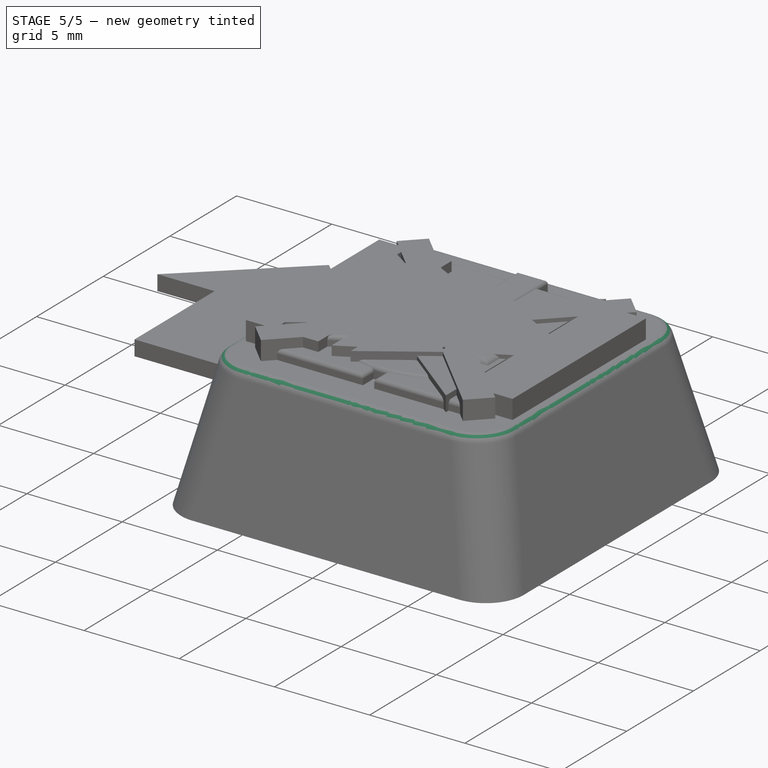
[diagram: stage 5 of 5 — iso view after this stage's code; geometry added in this stage tinted green]
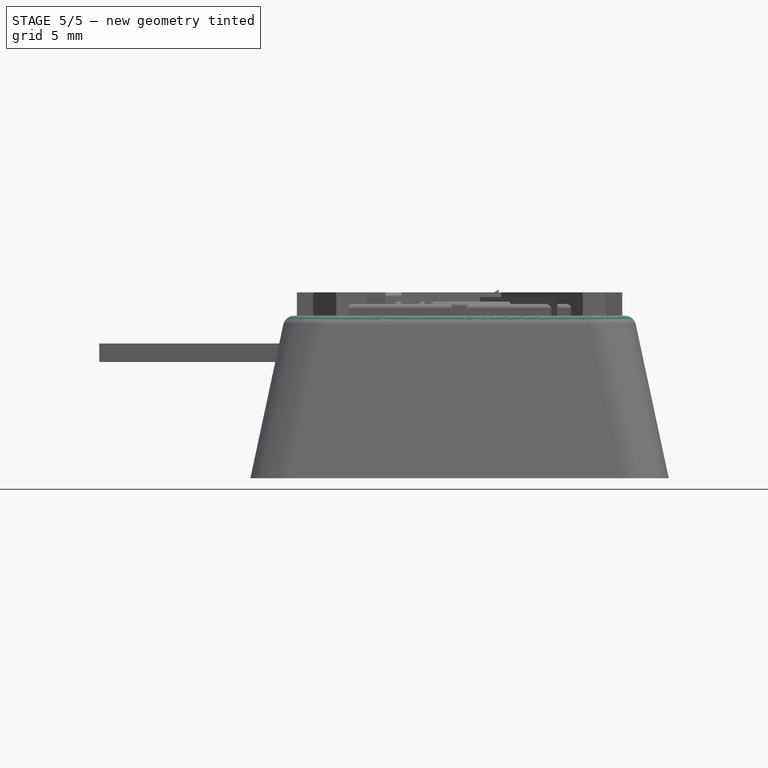
[diagram: stage 5 of 5 — front view after this stage's code; geometry added in this stage tinted green]
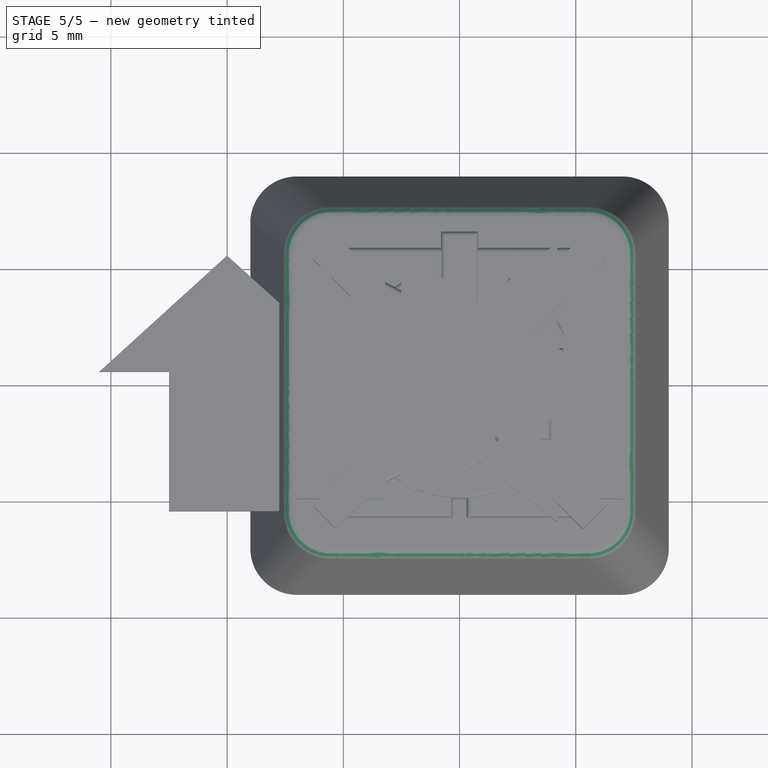
[diagram: stage 5 of 5 — top view after this stage's code; geometry added in this stage tinted green]
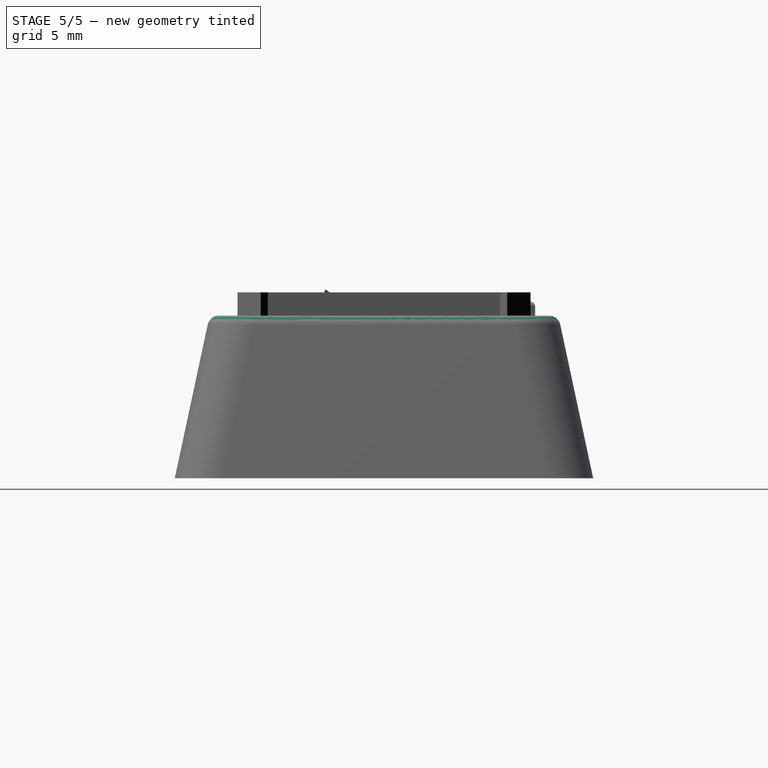
[diagram: stage 5 of 5 — right view after this stage's code; geometry added in this stage tinted green]
FEATURE [Sketcher::SketchObject] Sketch
  MapMode = 5
  Support = -> [XY_Plane]
  sketch-geometry (1):
    g0: Circle CenterX=0 CenterY=0 CenterZ=0 NormalX=0 NormalY=0 NormalZ=1 AngleXU=0 Radius=2.75
  constraints (2):
    c: Coincident(g0,g-1)
    c: Radius(g0) = 2.75
FEATURE [PartDesign::Pad] Pad
  Length = 4.5
  Length2 = 100
  Profile = -> Sketch
  Type = 0
FEATURE [Sketcher::SketchObject] Sketch001
  MapMode = 5
  Placement = pos=(0,0,0) rot=(1,0,0;3.14159rad)
  Support = -> [Pad]
  sketch-geometry (12):
    g0: LineSegment StartX=-0.6 StartY=2.1 StartZ=0 EndX=0.6 EndY=2.1 EndZ=0
    g1: LineSegment StartX=0.6 StartY=2.1 StartZ=0 EndX=0.6 EndY=0.8 EndZ=0
    g2: LineSegment StartX=0.6 StartY=0.8 StartZ=0 EndX=2.1 EndY=0.8 EndZ=0
    g3: LineSegment StartX=2.1 StartY=0.8 StartZ=0 EndX=2.1 EndY=-0.8 EndZ=0
    g4: LineSegment StartX=2.1 StartY=-0.8 StartZ=0 EndX=0.6 EndY=-0.8 EndZ=0
    g5: LineSegment StartX=0.6 StartY=-0.8 StartZ=0 EndX=0.6 EndY=-2.1 EndZ=0
    g6: LineSegment StartX=0.6 StartY=-2.1 StartZ=0 EndX=-0.6 EndY=-2.1 EndZ=0
    g7: LineSegment StartX=-0.6 StartY=-2.1 StartZ=0 EndX=-0.6 EndY=-0.8 EndZ=0
    g8: LineSegment StartX=-0.6 StartY=-0.8 StartZ=0 EndX=-2.1 EndY=-0.8 EndZ=0
    g9: LineSegment StartX=-2.1 StartY=-0.8 StartZ=0 EndX=-2.1 EndY=0.8 EndZ=0
    g10: LineSegment StartX=-2.1 StartY=0.8 StartZ=0 EndX=-0.6 EndY=0.8 EndZ=0
    g11: LineSegment StartX=-0.6 StartY=0.8 StartZ=0 EndX=-0.6 EndY=2.1 EndZ=0
  constraints (36):
    c: Horizontal(g0)
    c: Coincident(g0,g1)
    c: Vertical(g1)
    c: Coincident(g1,g2)
    c: Horizontal(g2)
    c: Coincident(g2,g3)
    c: Vertical(g3)
    c: Coincident(g3,g4)
    c: Horizontal(g4)
    c: Coincident(g4,g5)
    c: Vertical(g5)
    c: Coincident(g5,g6)
    c: Horizontal(g6)
    c: Coincident(g6,g7)
    c: Vertical(g7)
    c: Coincident(g7,g8)
    c: Horizontal(g8)
    c: Coincident(g8,g9)
    c: Vertical(g9)
    c: Coincident(g9,g10)
    c: Horizontal(g10)
    c: Coincident(g10,g11)
    c: Coincident(g11,g0)
    c: Vertical(g11)
    c: DistanceX(g0,g0) = 1.2
    c: DistanceX(g9,g2) = 4.2
    c: DistanceY(g8,g9) = 1.6
    c: DistanceY(g1,g10) = 0
    c: DistanceX(g4,g1) = 0
    c: Equal(g10,g2)
    c: Equal(g7,g11)
    c: DistanceY(g-1,g1) = 0.8
    c: DistanceX(g-1,g4) = 0.6
    c: DistanceY(g5,g0) = 4.2
    c: Equal(g9,g3)
    c: Equal(g0,g6)
FEATURE [PartDesign::Pocket] Pocket
  BaseFeature = -> Pad
  Length = 4
  Length2 = 100
  Profile = -> Sketch001
  Type = 0
FEATURE [Part::MultiFuse] Fusion001
  Shapes = -> [Body,Cut]
FEATURE [Part::Fillet] Fillet
  Base = -> Fusion001
  Edges = 1 edges r=1.5: [Edge15]
FEATURE [Part::Fillet] Fillet001
  Base = -> Fillet
  Edges = 16 edges r=1: [Edge18,Edge19,Edge20,Edge21,Edge22,Edge23,Edge24,Edge25,Edge26,Edge27,Edge28,Edge29,Edge30,Edge31,Edge32,Edge33]
FEATURE [Part::Chamfer] Chamfer
  Base = -> Fillet001
  Edges = 12 edges r=0.5: [Edge123,Edge125,Edge127,Edge129,Edge131,Edge133,Edge135,Edge137,Edge139,Edge141,Edge143,Edge145]
FEATURE [Part::Fillet] Fillet002  label="Körper"
  Base = -> Chamfer
  Edges = 8 edges r=0.5: [Edge156,Edge158,Edge160,Edge162,Edge164,Edge166,Edge168,Edge169]
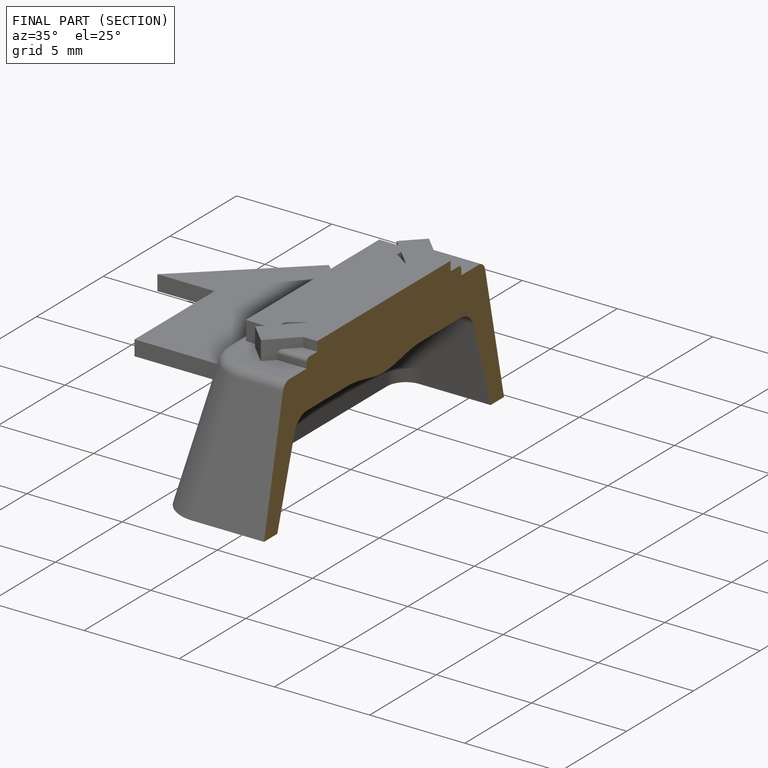
[diagram: finished part — half-section view (interior)]
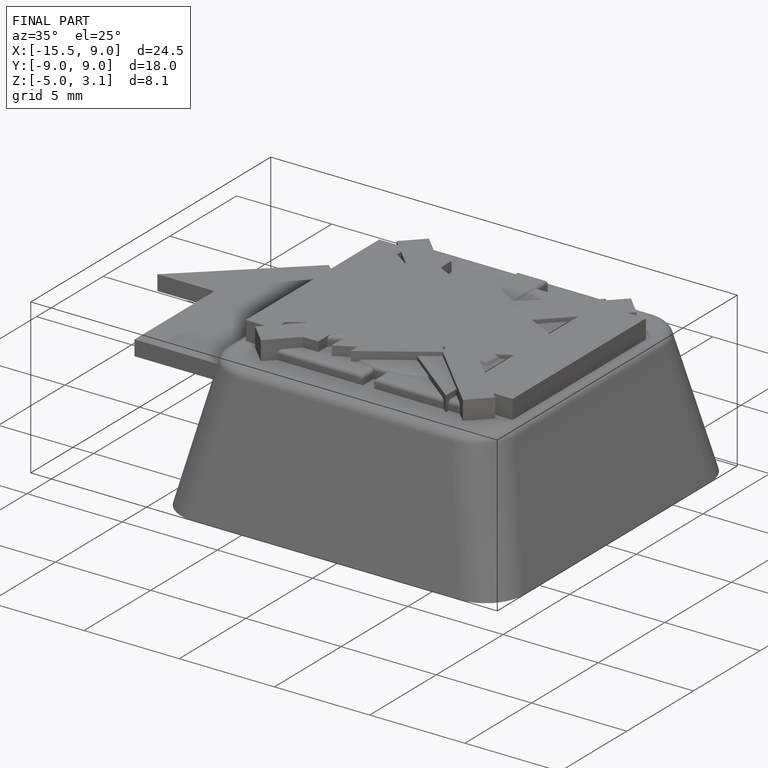
[diagram: finished part — iso view with bounding-box wireframe]
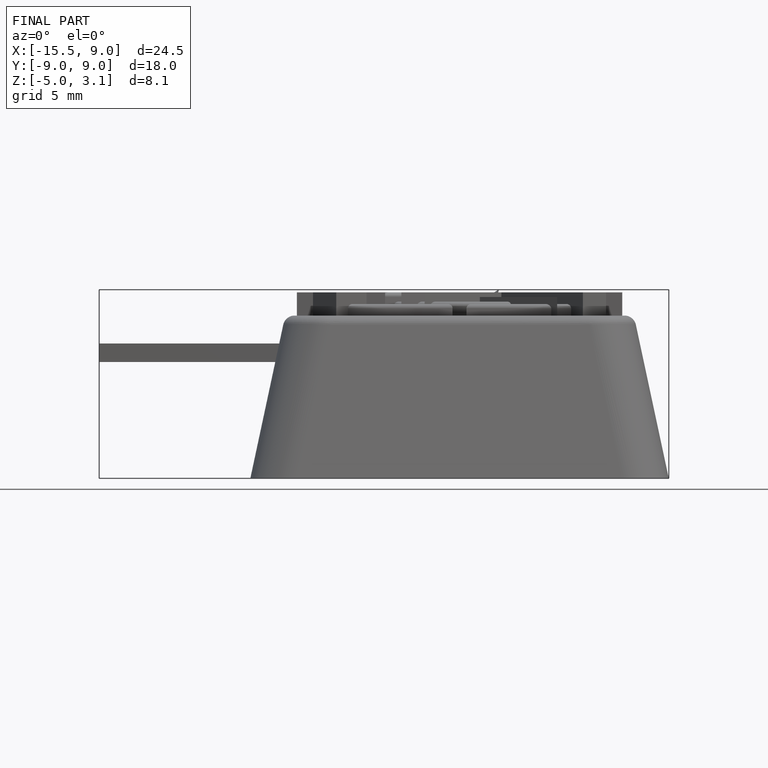
[diagram: finished part — front view with bounding-box wireframe]
